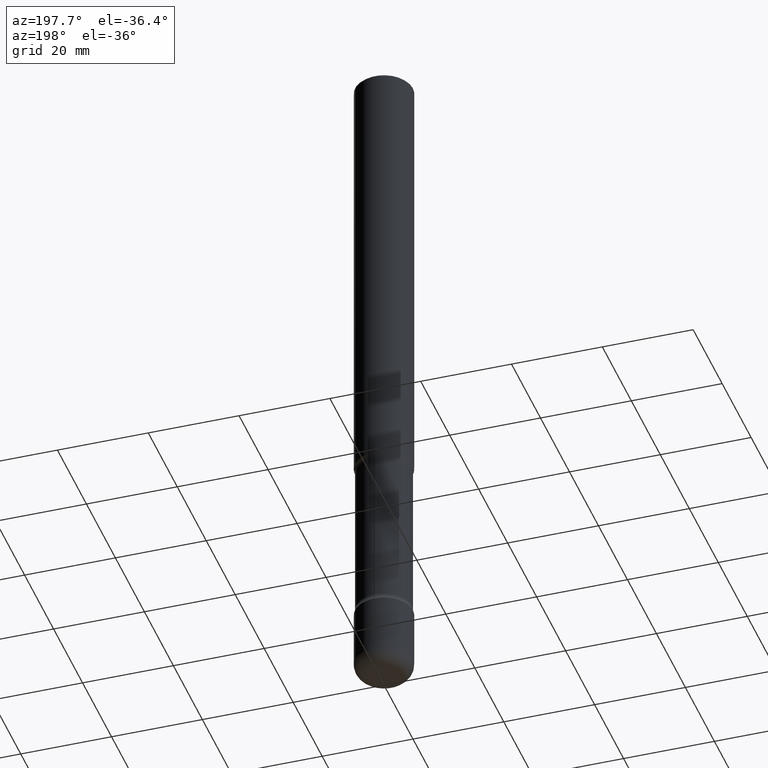
[diagram: clean part render]
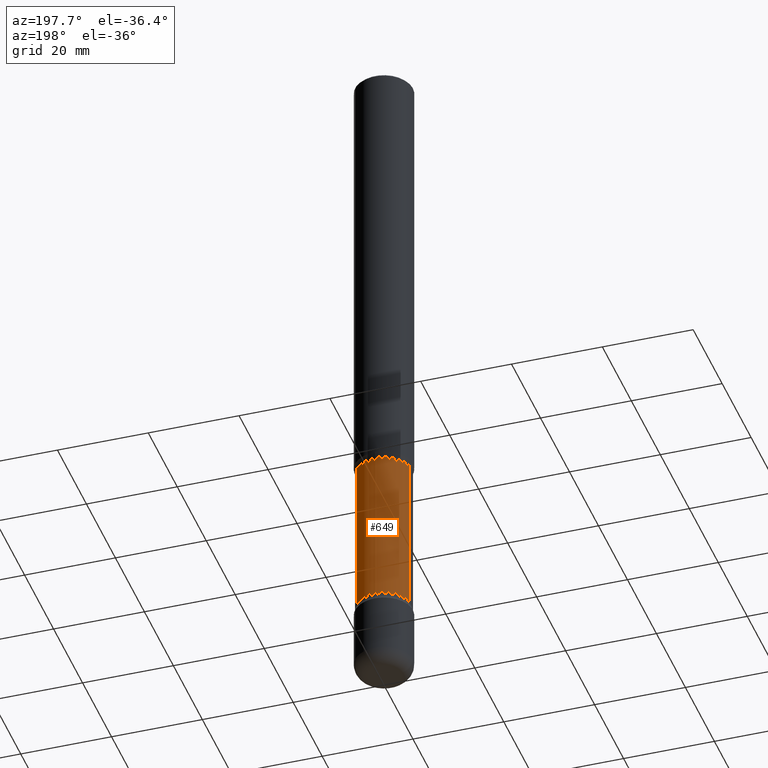
[diagram: same view with one face highlighted and labeled with its STEP entity id]
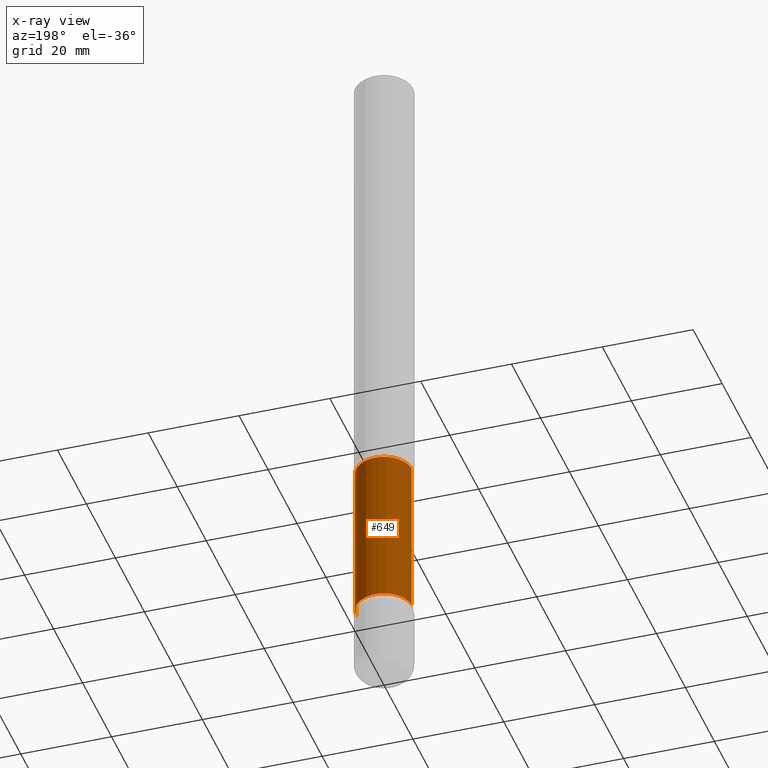
[diagram: x-ray of the same camera — body ghosted, the highlighted face saturated]
A machine part, auxiliary view. The second image highlights one B-rep face of the part: STEP entity #649.
The next image is the same camera in x-ray: the body ghosted, the highlighted face saturated — about 0% of this face is hidden behind the body in this view.
In plain terms, the highlighted cylindrical surface (edge-blend (fillet) strip) has radius 6.096 mm, axis along (-0, 0, 1).
Its self-contained STEP definition (entity closure, byte-faithful):
#36 = CARTESIAN_POINT ( 'NONE',  ( -0.2400000000000001299, -1.187418396267109730E-14, -3.923989794855664126 ) ) ;
#63 = EDGE_CURVE ( 'NONE', #359, #88, #607, .T. ) ;
#88 = VERTEX_POINT ( 'NONE', #234 ) ;
#105 = DIRECTION ( 'NONE',  ( 1.000000000000000000, -6.982962677686265133E-15, 0.000000000000000000 ) ) ;
#110 = DIRECTION ( 'NONE',  ( -2.445468806185136597E-29, 3.491481338843145583E-15, 1.000000000000000000 ) ) ;
#116 = CARTESIAN_POINT ( 'NONE',  ( 9.476191623967405434E-29, -1.352949018801719066E-14, -3.875000000000000444 ) ) ;
#128 = ORIENTED_EDGE ( 'NONE', *, *, #499, .F. ) ;
#144 = CARTESIAN_POINT ( 'NONE',  ( 0.2400000000000002687, -2.027157628439431676E-14, -5.326010205144338094 ) ) ;
#147 = AXIS2_PLACEMENT_3D ( 'NONE', #116, #187, #365 ) ;
#187 = DIRECTION ( 'NONE',  ( -2.445468806185136597E-29, 3.491481338843145583E-15, 1.000000000000000000 ) ) ;
#194 = EDGE_LOOP ( 'NONE', ( #672, #689, #128, #456 ) ) ;
#217 = DIRECTION ( 'NONE',  ( -2.445468806185136877E-29, 3.491481338843145188E-15, 1.000000000000000000 ) ) ;
#234 = CARTESIAN_POINT ( 'NONE',  ( 0.2400000000000001021, -1.537644818519419975E-14, -3.923989794855664126 ) ) ;
#240 = CYLINDRICAL_SURFACE ( 'NONE', #147, 0.2400000000000001854 ) ;
#359 = VERTEX_POINT ( 'NONE', #144 ) ;
#360 = DIRECTION ( 'NONE',  ( 1.000000000000000000, -6.982962677686260400E-15, 0.000000000000000000 ) ) ;
#365 = DIRECTION ( 'NONE',  ( 1.000000000000000000, -6.982962677686270655E-15, 0.000000000000000000 ) ) ;
#374 = CARTESIAN_POINT ( 'NONE',  ( -0.2400000000000002687, -1.694035901640351371E-14, -5.326010205144338094 ) ) ;
#418 = DIRECTION ( 'NONE',  ( -2.445468806185136877E-29, 3.491481338843145188E-15, 1.000000000000000000 ) ) ;
#456 = ORIENTED_EDGE ( 'NONE', *, *, #63, .F. ) ;
#479 = EDGE_CURVE ( 'NONE', #359, #561, #545, .T. ) ;
#482 = VERTEX_POINT ( 'NONE', #36 ) ;
#493 = EDGE_CURVE ( 'NONE', #561, #482, #732, .T. ) ;
#494 = VECTOR ( 'NONE', #217, 39.37007874015748143 ) ;
#499 = EDGE_CURVE ( 'NONE', #88, #482, #644, .T. ) ;
#522 = AXIS2_PLACEMENT_3D ( 'NONE', #792, #537, #360 ) ;
#535 = CARTESIAN_POINT ( 'NONE',  ( 9.595994639108339414E-29, -1.370053714254949480E-14, -3.923989794855664126 ) ) ;
#537 = DIRECTION ( 'NONE',  ( -2.445468806185136597E-29, 3.491481338843145583E-15, 1.000000000000000000 ) ) ;
#545 = CIRCLE ( 'NONE', #522, 0.2400000000000002687 ) ;
#561 = VERTEX_POINT ( 'NONE', #374 ) ;
#607 = LINE ( 'NONE', #774, #494 ) ;
#644 = CIRCLE ( 'NONE', #789, 0.2400000000000001021 ) ;
#649 = ADVANCED_FACE ( 'NONE', ( #796 ), #240, .T. ) ;
#653 = VECTOR ( 'NONE', #418, 39.37007874015748143 ) ;
#669 = CARTESIAN_POINT ( 'NONE',  ( -0.2400000000000001854, -1.182418762219294870E-14, -3.875000000000000444 ) ) ;
#672 = ORIENTED_EDGE ( 'NONE', *, *, #479, .T. ) ;
#689 = ORIENTED_EDGE ( 'NONE', *, *, #493, .T. ) ;
#732 = LINE ( 'NONE', #669, #653 ) ;
#774 = CARTESIAN_POINT ( 'NONE',  ( 0.2400000000000001854, -1.520540123066189720E-14, -3.875000000000000444 ) ) ;
#789 = AXIS2_PLACEMENT_3D ( 'NONE', #535, #110, #105 ) ;
#792 = CARTESIAN_POINT ( 'NONE',  ( 1.302459181810417859E-28, -1.859566524174961022E-14, -5.326010205144338094 ) ) ;
#796 = FACE_OUTER_BOUND ( 'NONE', #194, .T. ) ;